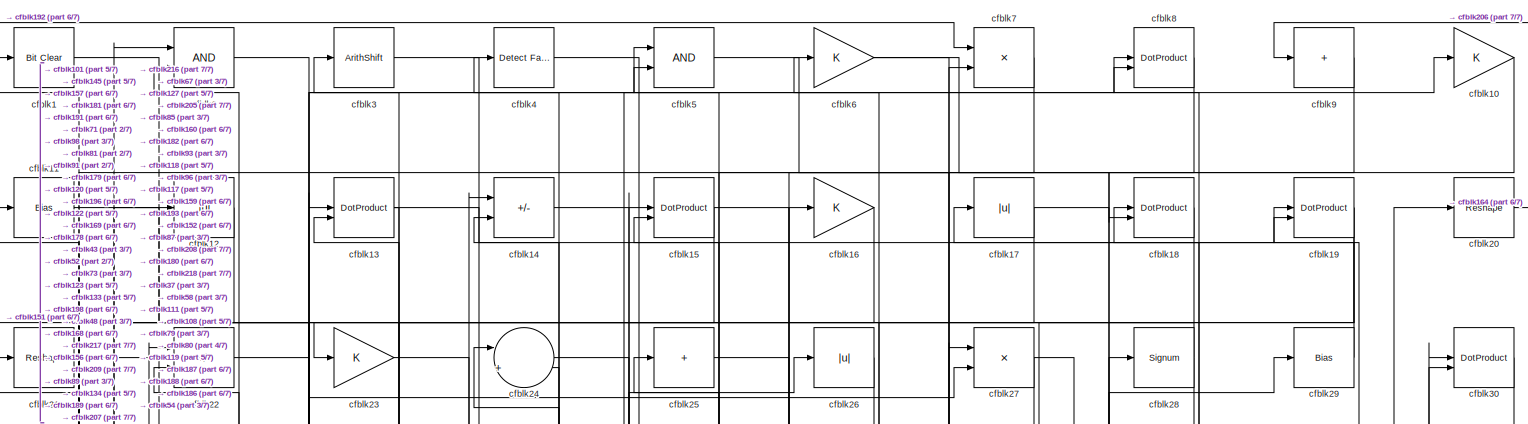
[diagram: root canvas - part 1/7, full width, top band]
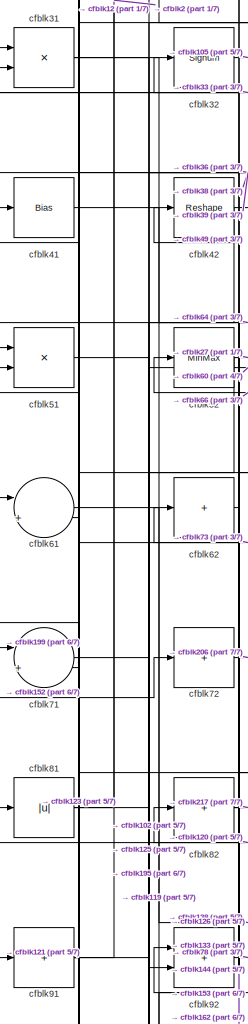
[diagram: root canvas - part 2/7, top left region]
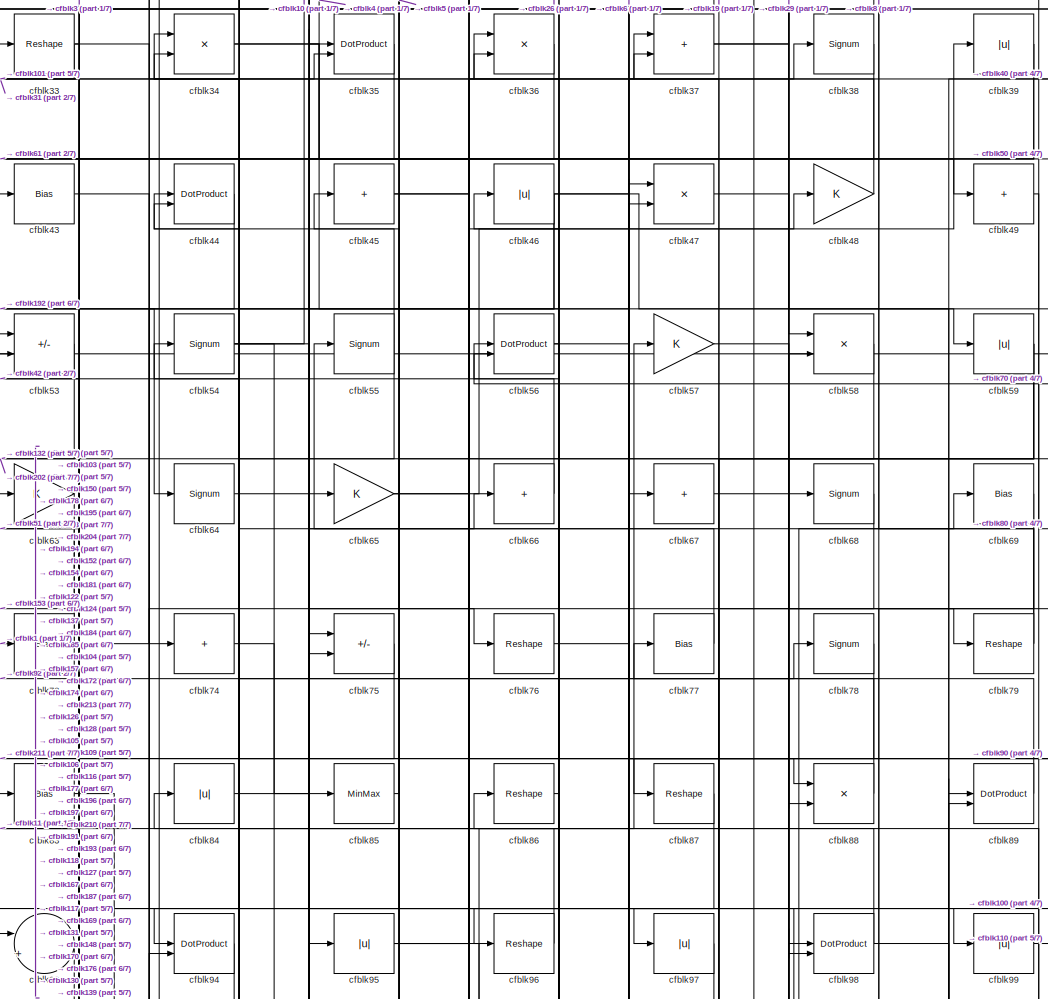
[diagram: root canvas - part 3/7, top center region]
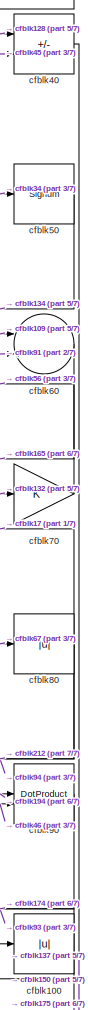
[diagram: root canvas - part 4/7, top right region]
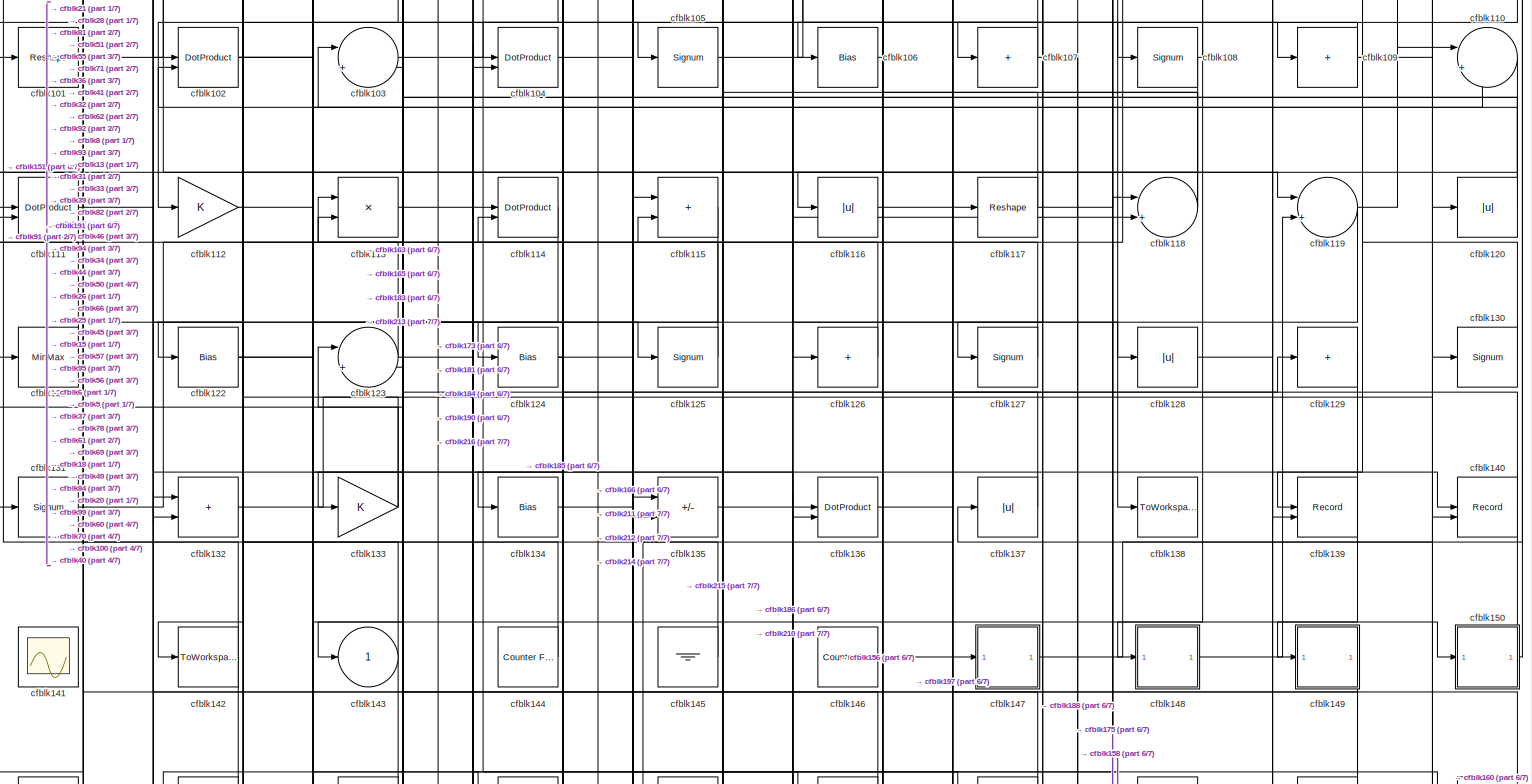
[diagram: root canvas - part 5/7, full width, middle band]
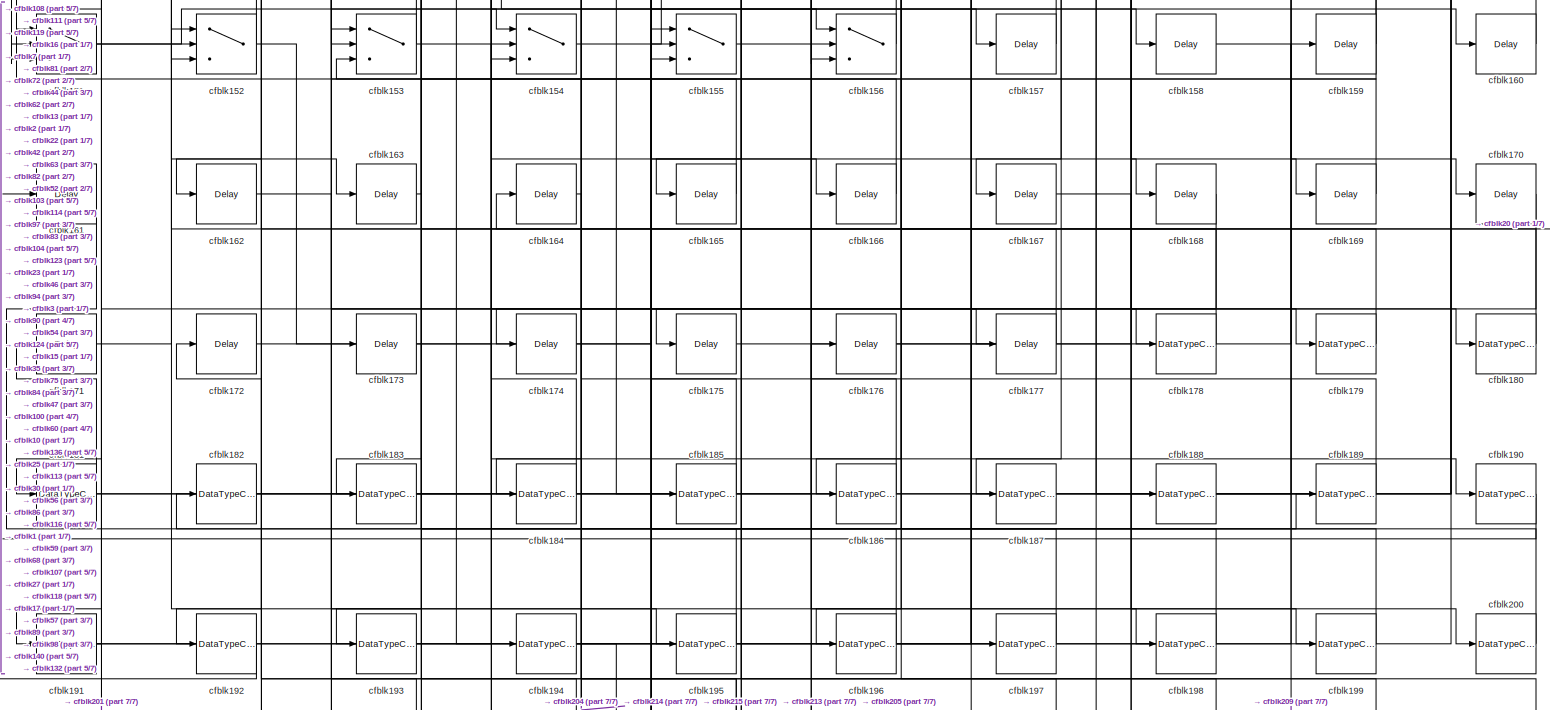
[diagram: root canvas - part 6/7, full width, bottom band]
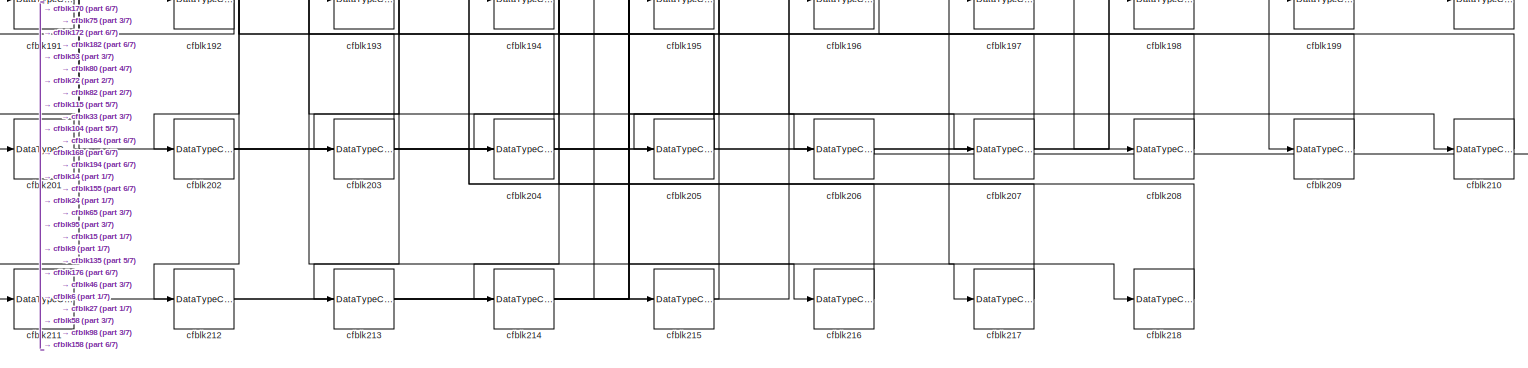
[diagram: root canvas - part 7/7, full width, bottom band]
MODEL slx_18c152e99af0
KIND model
CONFIG AbsTol = auto
CONFIG EnableMultiTasking = off
CONFIG FixedStep = auto
CONFIG MaxStep = auto
CONFIG MinStep = auto
CONFIG RelTol = 1e-3
CONFIG SampleTimeConstraint = Unconstrained
CONFIG SolverName = VariableStepAuto
CONFIG StartTime = 0.0
CONFIG StopTime = 10.0
BLOCK [Reference] cfblk1  REF=simulink/Logic and Bit
Operations/Bit Clear
  LibrarySourceBlock = hdlsllib/Logic and Bit\nOperations/Bit Clear
  SourceBlock = simulink/Logic and Bit\nOperations/Bit Clear
  SourceType = Bit Clear
BLOCK [Gain] cfblk10
BLOCK [Abs] cfblk100
  SaturateOnIntegerOverflow = off
BLOCK [Reshape] cfblk101
BLOCK [DotProduct] cfblk102
  OutDataTypeStr = Inherit: Inherit via internal rule
BLOCK [Sum] cfblk103
  Inputs = |++
BLOCK [DotProduct] cfblk104
  OutDataTypeStr = Inherit: Inherit via internal rule
BLOCK [Signum] cfblk105
BLOCK [Bias] cfblk106
  Bias = 0.0
  SaturateOnIntegerOverflow = off
BLOCK [Sum] cfblk107
  IconShape = rectangular
  Inputs = +
BLOCK [Signum] cfblk108
BLOCK [Sum] cfblk109
  IconShape = rectangular
  Inputs = +
BLOCK [Bias] cfblk11
  Bias = 0.0
  SaturateOnIntegerOverflow = off
BLOCK [Sum] cfblk110
  Inputs = |++
BLOCK [DotProduct] cfblk111
  OutDataTypeStr = Inherit: Inherit via internal rule
BLOCK [Gain] cfblk112
BLOCK [Product] cfblk113
  Inputs = */
  RndMeth = Zero
  SaturateOnIntegerOverflow = on
BLOCK [DotProduct] cfblk114
  OutDataTypeStr = Inherit: Inherit via internal rule
BLOCK [Sum] cfblk115
  IconShape = rectangular
BLOCK [Abs] cfblk116
  SaturateOnIntegerOverflow = off
BLOCK [Reshape] cfblk117
BLOCK [Sum] cfblk118
  Inputs = |++
BLOCK [Sum] cfblk119
  Inputs = |++
BLOCK [Abs] cfblk12
  SaturateOnIntegerOverflow = off
BLOCK [Abs] cfblk120
  SaturateOnIntegerOverflow = off
BLOCK [MinMax] cfblk121
BLOCK [Bias] cfblk122
  Bias = 0.0
  SaturateOnIntegerOverflow = off
BLOCK [Sum] cfblk123
  Inputs = |++
BLOCK [Bias] cfblk124
  Bias = 0.0
  SaturateOnIntegerOverflow = off
BLOCK [Signum] cfblk125
BLOCK [Sum] cfblk126
  IconShape = rectangular
  Inputs = +
BLOCK [Signum] cfblk127
BLOCK [Abs] cfblk128
  SaturateOnIntegerOverflow = off
BLOCK [Sum] cfblk129
  IconShape = rectangular
  Inputs = +
BLOCK [DotProduct] cfblk13
  OutDataTypeStr = Inherit: Inherit via internal rule
BLOCK [Signum] cfblk130
BLOCK [Signum] cfblk131
BLOCK [Sum] cfblk132
  IconShape = rectangular
BLOCK [Gain] cfblk133
BLOCK [Bias] cfblk134
  Bias = 0.0
  SaturateOnIntegerOverflow = off
BLOCK [Sum] cfblk135
  IconShape = rectangular
  Inputs = +-
BLOCK [DotProduct] cfblk136
  OutDataTypeStr = Inherit: Inherit via internal rule
BLOCK [Abs] cfblk137
  SaturateOnIntegerOverflow = off
BLOCK [ToWorkspace] cfblk138
  MaxDataPoints = inf
  SampleTime = -1
  SaveFormat = Timeseries
  VariableName = simout
BLOCK [Record] cfblk139
  CompatibilityTag = XY
  FileSettingsInternal = {"entries":[{"content":{"excelSettings":{"content":{},"type":"Streamout.ExcelSettings"}},"type":"Streamout.FileSettingStorage","uuid":""}],"packageUris":["http:\/\/schema.mathworks.com\/mf0\/streamout_blocks\/R2020a"],"version":"1.0"}
  Layout = [1 1]
  SignalsInternal = {"entries":[{"content":{"signals":[{"content":{"blockPath":[],"dimensions":[1],"domain":"","lineColor":"#a2142f","plots":[1],"port":1,"signalID":3074,"signalName":"XY Graph:1"},"type":"RecordBlkView.Signal","uuid":""},{"content":{"blockPath":[],"dimensions":[1],"domain":"","lineColor":"#139fff","plots":[1],"port":2,"signalID":3077,"signalName":"XY Graph:2"},"type":"RecordBlkView.Signal","uuid":""}...<+146ch>
  VisualizationBindings = {"xyplotplugin":{"info":[{"series":[{"bindingParametersList":[{"parameter":"X-Axis","signalID":3074,"signalName":"XY Graph:1"},{"parameter":"Y-Axis","signalID":3077,"signalName":"XY Graph:2"}],"seriesID":48839}],"subplotID":1}]}}
  st = -1
BLOCK [Sum] cfblk14
  IconShape = rectangular
  Inputs = +-
BLOCK [Record] cfblk140
  CompatibilityTag = XY
  FileSettingsInternal = {"entries":[{"content":{"excelSettings":{"content":{},"type":"Streamout.ExcelSettings"}},"type":"Streamout.FileSettingStorage","uuid":""}],"packageUris":["http:\/\/schema.mathworks.com\/mf0\/streamout_blocks\/R2020a"],"version":"1.0"}
  Layout = [1 1]
  SignalsInternal = {"entries":[{"content":{"signals":[{"content":{"blockPath":[],"dimensions":[1],"domain":"","lineColor":"#a2142f","plots":[1],"port":1,"signalID":3082,"signalName":"XY Graph:1"},"type":"RecordBlkView.Signal","uuid":""},{"content":{"blockPath":[],"dimensions":[1],"domain":"","lineColor":"#139fff","plots":[1],"port":2,"signalID":3085,"signalName":"XY Graph:2"},"type":"RecordBlkView.Signal","uuid":""}...<+146ch>
  VisualizationBindings = {"xyplotplugin":{"info":[{"series":[{"bindingParametersList":[{"parameter":"X-Axis","signalID":3082,"signalName":"XY Graph:1"},{"parameter":"Y-Axis","signalID":3085,"signalName":"XY Graph:2"}],"seriesID":35612}],"subplotID":1}]}}
  st = -1
BLOCK [Scope] cfblk141
  Floating = on
  NumInputPorts = 1
  ScopeSpecificationString = Simulink.scopes.TimeScopeBlockCfg('CurrentConfiguration', extmgr.ConfigurationSet(extmgr.Configuration('Core','General UI',true,'FigureColor',[0.156862745098039 0.156862745098039 0.156862745098039]),extmgr.Configuration('Core','Source UI',true),extmgr.Configuration('Sources','WiredSimulink',true,'DataLoggingVariableName','ScopeData1','DataLoggingSaveFormat','StructureWithTime','DataLoggingLimitDat...<+2713ch>
BLOCK [ToWorkspace] cfblk142
  MaxDataPoints = inf
  SampleTime = -1
  SaveFormat = Timeseries
  VariableName = simout
BLOCK [Outport] cfblk143
  VectorParamsAs1DForOutWhenUnconnected = off
BLOCK [Reference] cfblk144  REF=hdlsllib/Sources/Counter
Free-Running
  SourceBlock = hdlsllib/Sources/Counter\nFree-Running
  SourceType = Counter Free-Running
BLOCK [Ground] cfblk145
BLOCK [Reference] cfblk146  REF=hdlsllib/Sources/Counter
Free-Running
  SourceBlock = hdlsllib/Sources/Counter\nFree-Running
  SourceType = Counter Free-Running
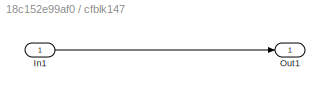
BLOCK [SubSystem] cfblk147
  LibrarySourceBlock = hdlsllib/Ports &\nSubsystems/Subsystem
BLOCK [Inport] cfblk147/In1
BLOCK [Outport] cfblk147/Out1
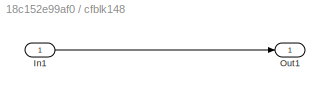
BLOCK [SubSystem] cfblk148
  LibrarySourceBlock = hdlsllib/Ports &\nSubsystems/Subsystem
BLOCK [Inport] cfblk148/In1
BLOCK [Outport] cfblk148/Out1
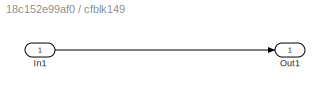
BLOCK [SubSystem] cfblk149
  LibrarySourceBlock = hdlsllib/Ports &\nSubsystems/Subsystem
BLOCK [Inport] cfblk149/In1
BLOCK [Outport] cfblk149/Out1
BLOCK [DotProduct] cfblk15
  OutDataTypeStr = Inherit: Inherit via internal rule
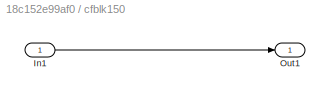
BLOCK [SubSystem] cfblk150
  LibrarySourceBlock = hdlsllib/Ports &\nSubsystems/Subsystem
BLOCK [Inport] cfblk150/In1
BLOCK [Outport] cfblk150/Out1
BLOCK [Switch] cfblk151
  InputSameDT = off
  SaturateOnIntegerOverflow = off
BLOCK [Switch] cfblk152
  InputSameDT = off
  SaturateOnIntegerOverflow = off
BLOCK [Switch] cfblk153
  InputSameDT = off
  SaturateOnIntegerOverflow = off
BLOCK [Switch] cfblk154
  InputSameDT = off
  SaturateOnIntegerOverflow = off
BLOCK [Switch] cfblk155
  InputSameDT = off
  SaturateOnIntegerOverflow = off
BLOCK [Switch] cfblk156
  InputSameDT = off
  SaturateOnIntegerOverflow = off
BLOCK [Delay] cfblk157
  InputPortMap = u0
  SampleTime = 1
BLOCK [Delay] cfblk158
  InputPortMap = u0
  SampleTime = 1
BLOCK [Delay] cfblk159
  InputPortMap = u0
  SampleTime = 1
BLOCK [Gain] cfblk16
BLOCK [Delay] cfblk160
  InputPortMap = u0
  SampleTime = 1
BLOCK [Delay] cfblk161
  InputPortMap = u0
  SampleTime = 1
BLOCK [Delay] cfblk162
  InputPortMap = u0
  SampleTime = 1
BLOCK [Delay] cfblk163
  InputPortMap = u0
  SampleTime = 1
BLOCK [Delay] cfblk164
  InputPortMap = u0
  SampleTime = 1
BLOCK [Delay] cfblk165
  InputPortMap = u0
  SampleTime = 1
BLOCK [Delay] cfblk166
  InputPortMap = u0
  SampleTime = 1
BLOCK [Delay] cfblk167
  InputPortMap = u0
  SampleTime = 1
BLOCK [Delay] cfblk168
  InputPortMap = u0
  SampleTime = 1
BLOCK [Delay] cfblk169
  InputPortMap = u0
  SampleTime = 1
BLOCK [Abs] cfblk17
  SaturateOnIntegerOverflow = off
BLOCK [Delay] cfblk170
  InputPortMap = u0
  SampleTime = 1
BLOCK [Delay] cfblk171
  InputPortMap = u0
  SampleTime = 1
BLOCK [Delay] cfblk172
  InputPortMap = u0
  SampleTime = 1
BLOCK [Delay] cfblk173
  InputPortMap = u0
  SampleTime = 1
BLOCK [Delay] cfblk174
  InputPortMap = u0
  SampleTime = 1
BLOCK [Delay] cfblk175
  InputPortMap = u0
  SampleTime = 1
BLOCK [Delay] cfblk176
  InputPortMap = u0
  SampleTime = 1
BLOCK [Delay] cfblk177
  InputPortMap = u0
  SampleTime = 1
BLOCK [DataTypeConversion] cfblk178
  OutDataTypeStr = uint8
  RndMeth = Floor
  SaturateOnIntegerOverflow = off
BLOCK [DataTypeConversion] cfblk179
  OutDataTypeStr = uint8
  RndMeth = Floor
  SaturateOnIntegerOverflow = off
BLOCK [DotProduct] cfblk18
  OutDataTypeStr = Inherit: Inherit via internal rule
BLOCK [DataTypeConversion] cfblk180
  OutDataTypeStr = uint8
  RndMeth = Floor
  SaturateOnIntegerOverflow = off
BLOCK [DataTypeConversion] cfblk181
  RndMeth = Floor
  SaturateOnIntegerOverflow = off
BLOCK [DataTypeConversion] cfblk182
  OutDataTypeStr = uint8
  RndMeth = Floor
  SaturateOnIntegerOverflow = off
BLOCK [DataTypeConversion] cfblk183
  OutDataTypeStr = uint8
  RndMeth = Floor
  SaturateOnIntegerOverflow = off
BLOCK [DataTypeConversion] cfblk184
  OutDataTypeStr = uint8
  RndMeth = Floor
  SaturateOnIntegerOverflow = off
BLOCK [DataTypeConversion] cfblk185
  OutDataTypeStr = uint8
  RndMeth = Floor
  SaturateOnIntegerOverflow = off
BLOCK [DataTypeConversion] cfblk186
  OutDataTypeStr = uint8
  RndMeth = Floor
  SaturateOnIntegerOverflow = off
BLOCK [DataTypeConversion] cfblk187
  OutDataTypeStr = uint8
  RndMeth = Floor
  SaturateOnIntegerOverflow = off
BLOCK [DataTypeConversion] cfblk188
  OutDataTypeStr = uint8
  RndMeth = Floor
  SaturateOnIntegerOverflow = off
BLOCK [DataTypeConversion] cfblk189
  OutDataTypeStr = uint8
  RndMeth = Floor
  SaturateOnIntegerOverflow = off
BLOCK [DotProduct] cfblk19
  OutDataTypeStr = Inherit: Inherit via internal rule
BLOCK [DataTypeConversion] cfblk190
  OutDataTypeStr = uint8
  RndMeth = Floor
  SaturateOnIntegerOverflow = off
BLOCK [DataTypeConversion] cfblk191
  RndMeth = Floor
  SaturateOnIntegerOverflow = off
BLOCK [DataTypeConversion] cfblk192
  OutDataTypeStr = uint8
  RndMeth = Floor
  SaturateOnIntegerOverflow = off
BLOCK [DataTypeConversion] cfblk193
  OutDataTypeStr = uint8
  RndMeth = Floor
  SaturateOnIntegerOverflow = off
BLOCK [DataTypeConversion] cfblk194
  RndMeth = Floor
  SaturateOnIntegerOverflow = off
BLOCK [DataTypeConversion] cfblk195
  OutDataTypeStr = uint8
  RndMeth = Floor
  SaturateOnIntegerOverflow = off
BLOCK [DataTypeConversion] cfblk196
  RndMeth = Floor
  SaturateOnIntegerOverflow = off
BLOCK [DataTypeConversion] cfblk197
  OutDataTypeStr = uint8
  RndMeth = Floor
  SaturateOnIntegerOverflow = off
BLOCK [DataTypeConversion] cfblk198
  OutDataTypeStr = uint8
  RndMeth = Floor
  SaturateOnIntegerOverflow = off
BLOCK [DataTypeConversion] cfblk199
  OutDataTypeStr = uint8
  RndMeth = Floor
  SaturateOnIntegerOverflow = off
BLOCK [Logic] cfblk2
  AllPortsSameDT = off
  OutDataTypeStr = boolean
BLOCK [Reshape] cfblk20
BLOCK [DataTypeConversion] cfblk200
  OutDataTypeStr = uint8
  RndMeth = Floor
  SaturateOnIntegerOverflow = off
BLOCK [DataTypeConversion] cfblk201
  OutDataTypeStr = uint8
  RndMeth = Floor
  SaturateOnIntegerOverflow = off
BLOCK [DataTypeConversion] cfblk202
  RndMeth = Floor
  SaturateOnIntegerOverflow = off
BLOCK [DataTypeConversion] cfblk203
  OutDataTypeStr = uint8
  RndMeth = Floor
  SaturateOnIntegerOverflow = off
BLOCK [DataTypeConversion] cfblk204
  OutDataTypeStr = uint8
  RndMeth = Floor
  SaturateOnIntegerOverflow = off
BLOCK [DataTypeConversion] cfblk205
  RndMeth = Floor
  SaturateOnIntegerOverflow = off
BLOCK [DataTypeConversion] cfblk206
  OutDataTypeStr = uint8
  RndMeth = Floor
  SaturateOnIntegerOverflow = off
BLOCK [DataTypeConversion] cfblk207
  OutDataTypeStr = uint8
  RndMeth = Floor
  SaturateOnIntegerOverflow = off
BLOCK [DataTypeConversion] cfblk208
  OutDataTypeStr = uint8
  RndMeth = Floor
  SaturateOnIntegerOverflow = off
BLOCK [DataTypeConversion] cfblk209
  OutDataTypeStr = uint8
  RndMeth = Floor
  SaturateOnIntegerOverflow = off
BLOCK [Reshape] cfblk21
BLOCK [DataTypeConversion] cfblk210
  OutDataTypeStr = uint8
  RndMeth = Floor
  SaturateOnIntegerOverflow = off
BLOCK [DataTypeConversion] cfblk211
  OutDataTypeStr = uint8
  RndMeth = Floor
  SaturateOnIntegerOverflow = off
BLOCK [DataTypeConversion] cfblk212
  OutDataTypeStr = uint8
  RndMeth = Floor
  SaturateOnIntegerOverflow = off
BLOCK [DataTypeConversion] cfblk213
  RndMeth = Floor
  SaturateOnIntegerOverflow = off
BLOCK [DataTypeConversion] cfblk214
  OutDataTypeStr = uint8
  RndMeth = Floor
  SaturateOnIntegerOverflow = off
BLOCK [DataTypeConversion] cfblk215
  OutDataTypeStr = uint8
  RndMeth = Floor
  SaturateOnIntegerOverflow = off
BLOCK [DataTypeConversion] cfblk216
  OutDataTypeStr = uint8
  RndMeth = Floor
  SaturateOnIntegerOverflow = off
BLOCK [DataTypeConversion] cfblk217
  OutDataTypeStr = uint8
  RndMeth = Floor
  SaturateOnIntegerOverflow = off
BLOCK [DataTypeConversion] cfblk218
  OutDataTypeStr = uint8
  RndMeth = Floor
  SaturateOnIntegerOverflow = off
BLOCK [Sum] cfblk22
  IconShape = rectangular
  Inputs = +-
BLOCK [Gain] cfblk23
BLOCK [Sum] cfblk24
  Inputs = |++
BLOCK [Sum] cfblk25
  IconShape = rectangular
  Inputs = +
BLOCK [Abs] cfblk26
  SaturateOnIntegerOverflow = off
BLOCK [Product] cfblk27
  Inputs = */
  RndMeth = Zero
  SaturateOnIntegerOverflow = on
BLOCK [Signum] cfblk28
BLOCK [Bias] cfblk29
  Bias = 0.0
  SaturateOnIntegerOverflow = off
BLOCK [ArithShift] cfblk3
  BitShiftNumber = 8
  InputPortMap = u0
BLOCK [DotProduct] cfblk30
  OutDataTypeStr = Inherit: Inherit via internal rule
BLOCK [Product] cfblk31
  Inputs = */
  RndMeth = Zero
  SaturateOnIntegerOverflow = on
BLOCK [Signum] cfblk32
BLOCK [Reshape] cfblk33
BLOCK [Product] cfblk34
  Inputs = */
  RndMeth = Zero
  SaturateOnIntegerOverflow = on
BLOCK [DotProduct] cfblk35
  OutDataTypeStr = Inherit: Inherit via internal rule
BLOCK [Product] cfblk36
  Inputs = */
  RndMeth = Zero
  SaturateOnIntegerOverflow = on
BLOCK [Sum] cfblk37
  IconShape = rectangular
BLOCK [Signum] cfblk38
BLOCK [Abs] cfblk39
  SaturateOnIntegerOverflow = off
BLOCK [Reference] cfblk4  REF=hdlsllib/Logic and Bit
Operations/Detect Fall
Nonpositive
  SourceBlock = hdlsllib/Logic and Bit\nOperations/Detect Fall\nNonpositive
  SourceType = Detect Fall Nonpositive
BLOCK [Sum] cfblk40
  IconShape = rectangular
  Inputs = +-
BLOCK [Bias] cfblk41
  Bias = 0.0
  SaturateOnIntegerOverflow = off
BLOCK [Reshape] cfblk42
BLOCK [Bias] cfblk43
  Bias = 0.0
  SaturateOnIntegerOverflow = off
BLOCK [DotProduct] cfblk44
  OutDataTypeStr = Inherit: Inherit via internal rule
BLOCK [Sum] cfblk45
  IconShape = rectangular
  Inputs = +
BLOCK [Abs] cfblk46
  SaturateOnIntegerOverflow = off
BLOCK [Product] cfblk47
  Inputs = */
  RndMeth = Zero
  SaturateOnIntegerOverflow = on
BLOCK [Gain] cfblk48
BLOCK [Sum] cfblk49
  IconShape = rectangular
  Inputs = +
BLOCK [Logic] cfblk5
  AllPortsSameDT = off
  OutDataTypeStr = boolean
BLOCK [Signum] cfblk50
BLOCK [Product] cfblk51
  Inputs = */
  RndMeth = Zero
  SaturateOnIntegerOverflow = on
BLOCK [MinMax] cfblk52
BLOCK [Sum] cfblk53
  IconShape = rectangular
  Inputs = +-
BLOCK [Signum] cfblk54
BLOCK [Signum] cfblk55
BLOCK [DotProduct] cfblk56
  OutDataTypeStr = Inherit: Inherit via internal rule
BLOCK [Gain] cfblk57
BLOCK [Product] cfblk58
  Inputs = */
  RndMeth = Zero
  SaturateOnIntegerOverflow = on
BLOCK [Abs] cfblk59
  SaturateOnIntegerOverflow = off
BLOCK [Gain] cfblk6
BLOCK [Sum] cfblk60
  Inputs = |++
BLOCK [Sum] cfblk61
  Inputs = |++
BLOCK [Sum] cfblk62
  IconShape = rectangular
  Inputs = +
BLOCK [Gain] cfblk63
BLOCK [Signum] cfblk64
BLOCK [Gain] cfblk65
BLOCK [Sum] cfblk66
  IconShape = rectangular
  Inputs = +
BLOCK [Sum] cfblk67
  IconShape = rectangular
  Inputs = +
BLOCK [Signum] cfblk68
BLOCK [Bias] cfblk69
  Bias = 0.0
  SaturateOnIntegerOverflow = off
BLOCK [Product] cfblk7
  Inputs = */
  RndMeth = Zero
  SaturateOnIntegerOverflow = on
BLOCK [Gain] cfblk70
BLOCK [Sum] cfblk71
  Inputs = |++
BLOCK [Sum] cfblk72
  IconShape = rectangular
  Inputs = +
BLOCK [Bias] cfblk73
  Bias = 0.0
  SaturateOnIntegerOverflow = off
BLOCK [Sum] cfblk74
  IconShape = rectangular
  Inputs = +
BLOCK [Sum] cfblk75
  IconShape = rectangular
  Inputs = +-
BLOCK [Reshape] cfblk76
BLOCK [Bias] cfblk77
  Bias = 0.0
  SaturateOnIntegerOverflow = off
BLOCK [Signum] cfblk78
BLOCK [Reshape] cfblk79
BLOCK [DotProduct] cfblk8
  OutDataTypeStr = Inherit: Inherit via internal rule
BLOCK [Abs] cfblk80
  SaturateOnIntegerOverflow = off
BLOCK [Abs] cfblk81
  SaturateOnIntegerOverflow = off
BLOCK [Sum] cfblk82
  IconShape = rectangular
  Inputs = +
BLOCK [Bias] cfblk83
  Bias = 0.0
  SaturateOnIntegerOverflow = off
BLOCK [Abs] cfblk84
  SaturateOnIntegerOverflow = off
BLOCK [MinMax] cfblk85
BLOCK [Reshape] cfblk86
BLOCK [Reshape] cfblk87
BLOCK [Product] cfblk88
  Inputs = */
  RndMeth = Zero
  SaturateOnIntegerOverflow = on
BLOCK [DotProduct] cfblk89
  OutDataTypeStr = Inherit: Inherit via internal rule
BLOCK [Sum] cfblk9
  IconShape = rectangular
  Inputs = +
BLOCK [DotProduct] cfblk90
  OutDataTypeStr = Inherit: Inherit via internal rule
BLOCK [Sum] cfblk91
  IconShape = rectangular
  Inputs = +
BLOCK [Sum] cfblk92
  IconShape = rectangular
BLOCK [Sum] cfblk93
  Inputs = |++
BLOCK [DotProduct] cfblk94
  OutDataTypeStr = Inherit: Inherit via internal rule
BLOCK [Abs] cfblk95
  SaturateOnIntegerOverflow = off
BLOCK [Reshape] cfblk96
BLOCK [Abs] cfblk97
  SaturateOnIntegerOverflow = off
BLOCK [DotProduct] cfblk98
  OutDataTypeStr = Inherit: Inherit via internal rule
BLOCK [Abs] cfblk99
  SaturateOnIntegerOverflow = off
NET cfblk100:1 -> cfblk175:1, cfblk93:1
LINE cfblk101:1 -> cfblk36:1
NET cfblk102:1 -> cfblk110:2, cfblk124:1, cfblk150:1
LINE cfblk103:1 -> cfblk108:1
LINE cfblk104:1 -> cfblk66:1
LINE cfblk105:1 -> cfblk57:1
LINE cfblk106:1 -> cfblk36:2
NET cfblk107:1 -> cfblk106:1, cfblk188:1
NET cfblk108:1 -> cfblk151:3, cfblk18:1
NET cfblk109:1 -> cfblk107:1, cfblk60:1
LINE cfblk10:1 -> cfblk156:2
LINE cfblk110:1 -> cfblk142:1
LINE cfblk111:1 -> cfblk140:1
LINE cfblk112:1 -> cfblk136:2
LINE cfblk113:1 -> cfblk158:1
LINE cfblk114:1 -> cfblk183:1
LINE cfblk115:1 -> cfblk213:1
LINE cfblk116:1 -> cfblk197:1
NET cfblk117:1 -> cfblk28:1, cfblk45:1
NET cfblk118:1 -> cfblk37:2, cfblk6:1
NET cfblk119:1 -> cfblk151:1, cfblk20:1
LINE cfblk11:1 -> cfblk43:1
NET cfblk120:1 -> cfblk102:2, cfblk31:1, cfblk82:1
LINE cfblk121:1 -> cfblk91:1
NET cfblk122:1 -> cfblk5:2, cfblk8:2
NET cfblk123:1 -> cfblk190:1, cfblk81:1
NET cfblk124:1 -> cfblk166:1, cfblk44:1
LINE cfblk125:1 -> cfblk113:1
LINE cfblk126:1 -> cfblk32:1
LINE cfblk127:1 -> cfblk25:1
LINE cfblk128:1 -> cfblk40:1
LINE cfblk129:1 -> cfblk149:1
LINE cfblk12:1 -> cfblk71:2
LINE cfblk130:1 -> cfblk84:1
LINE cfblk131:1 -> cfblk69:1
LINE cfblk132:1 -> cfblk70:1
NET cfblk133:1 -> cfblk121:1, cfblk62:1
LINE cfblk134:1 -> cfblk26:1
LINE cfblk135:1 -> cfblk210:1
LINE cfblk136:1 -> cfblk129:1
LINE cfblk137:1 -> cfblk34:1
NET cfblk13:1 -> cfblk123:2, cfblk19:2
LINE cfblk144:1 -> cfblk92:1
LINE cfblk145:1 -> cfblk21:1
LINE cfblk146:1 -> cfblk147:1
LINE cfblk147/In1:1 -> cfblk147/Out1:1
LINE cfblk147:1 -> cfblk119:2
LINE cfblk148/In1:1 -> cfblk148/Out1:1
LINE cfblk148:1 -> cfblk130:1
LINE cfblk149/In1:1 -> cfblk149/Out1:1
LINE cfblk149:1 -> cfblk131:1
LINE cfblk14:1 -> cfblk216:1
LINE cfblk150/In1:1 -> cfblk150/Out1:1
NET cfblk150:1 -> cfblk100:1, cfblk33:1
NET cfblk151:1 -> cfblk154:1, cfblk163:1
NET cfblk152:1 -> cfblk173:1, cfblk72:1
NET cfblk153:1 -> cfblk177:1, cfblk52:1
LINE cfblk154:1 -> cfblk47:2
LINE cfblk155:1 -> cfblk198:1
LINE cfblk156:1 -> cfblk113:2
LINE cfblk157:1 -> cfblk1:1
LINE cfblk158:1 -> cfblk209:1
LINE cfblk159:1 -> cfblk27:1
NET cfblk15:1 -> cfblk101:1, cfblk118:2
LINE cfblk160:1 -> cfblk132:1
LINE cfblk161:1 -> cfblk189:1
LINE cfblk162:1 -> cfblk179:1
LINE cfblk163:1 -> cfblk123:1
LINE cfblk164:1 -> cfblk214:1
LINE cfblk165:1 -> cfblk103:1
LINE cfblk166:1 -> cfblk153:3
LINE cfblk167:1 -> cfblk200:1
LINE cfblk168:1 -> cfblk204:1
LINE cfblk169:1 -> cfblk13:1
LINE cfblk16:1 -> cfblk181:1
LINE cfblk170:1 -> cfblk201:1
LINE cfblk171:1 -> cfblk152:1
LINE cfblk172:1 -> cfblk35:1
LINE cfblk173:1 -> cfblk104:2
LINE cfblk174:1 -> cfblk75:1
LINE cfblk175:1 -> cfblk118:1
LINE cfblk176:1 -> cfblk89:2
LINE cfblk177:1 -> cfblk56:2
LINE cfblk178:1 -> cfblk63:1
LINE cfblk179:1 -> cfblk22:1
NET cfblk17:1 -> cfblk151:2, cfblk180:1
LINE cfblk180:1 -> cfblk22:2
NET cfblk181:1 -> cfblk140:2, cfblk171:1, cfblk94:2
LINE cfblk182:1 -> cfblk16:1
LINE cfblk183:1 -> cfblk159:1
LINE cfblk184:1 -> cfblk114:1
LINE cfblk185:1 -> cfblk114:2
LINE cfblk186:1 -> cfblk136:1
LINE cfblk187:1 -> cfblk30:1
LINE cfblk188:1 -> cfblk30:2
LINE cfblk189:1 -> cfblk15:1
LINE cfblk18:1 -> cfblk133:1
LINE cfblk190:1 -> cfblk161:1
NET cfblk191:1 -> cfblk111:2, cfblk154:2, cfblk47:1
LINE cfblk192:1 -> cfblk7:1
LINE cfblk193:1 -> cfblk7:2
NET cfblk194:1 -> cfblk215:1, cfblk90:1
LINE cfblk195:1 -> cfblk83:1
NET cfblk196:1 -> cfblk2:2, cfblk89:1
LINE cfblk197:1 -> cfblk86:1
LINE cfblk198:1 -> cfblk13:2
LINE cfblk199:1 -> cfblk155:1
NET cfblk19:1 -> cfblk87:1, cfblk96:1
LINE cfblk1:1 -> cfblk73:1
LINE cfblk200:1 -> cfblk155:2
LINE cfblk201:1 -> cfblk155:3
NET cfblk202:1 -> cfblk58:2, cfblk95:1, cfblk98:1
LINE cfblk203:1 -> cfblk53:1
LINE cfblk204:1 -> cfblk53:2
NET cfblk205:1 -> cfblk172:1, cfblk182:1
LINE cfblk206:1 -> cfblk9:1
LINE cfblk207:1 -> cfblk15:2
LINE cfblk208:1 -> cfblk24:1
LINE cfblk209:1 -> cfblk24:2
LINE cfblk20:1 -> cfblk164:1
LINE cfblk210:1 -> cfblk46:1
LINE cfblk211:1 -> cfblk135:1
LINE cfblk212:1 -> cfblk135:2
NET cfblk213:1 -> cfblk176:1, cfblk65:1
LINE cfblk214:1 -> cfblk115:1
LINE cfblk215:1 -> cfblk115:2
LINE cfblk216:1 -> cfblk104:1
LINE cfblk217:1 -> cfblk14:1
LINE cfblk218:1 -> cfblk14:2
LINE cfblk21:1 -> cfblk120:1
LINE cfblk22:1 -> cfblk178:1
LINE cfblk23:1 -> cfblk168:1
LINE cfblk24:1 -> cfblk207:1
LINE cfblk25:1 -> cfblk160:1
LINE cfblk26:1 -> cfblk93:2
NET cfblk27:1 -> cfblk152:2, cfblk208:1
NET cfblk28:1 -> cfblk111:1, cfblk23:1
LINE cfblk29:1 -> cfblk19:1
LINE cfblk2:1 -> cfblk156:3
LINE cfblk30:1 -> cfblk186:1
NET cfblk31:1 -> cfblk49:1, cfblk64:1
LINE cfblk32:1 -> cfblk105:1
NET cfblk33:1 -> cfblk203:1, cfblk31:2, cfblk35:2
NET cfblk34:1 -> cfblk126:1, cfblk50:1
LINE cfblk35:1 -> cfblk75:2
LINE cfblk36:1 -> cfblk61:1
NET cfblk37:1 -> cfblk29:1, cfblk59:1
LINE cfblk38:1 -> cfblk92:2
NET cfblk39:1 -> cfblk103:2, cfblk51:1
LINE cfblk3:1 -> cfblk156:1
LINE cfblk40:1 -> cfblk137:1
LINE cfblk41:1 -> cfblk119:1
NET cfblk42:1 -> cfblk199:1, cfblk71:1
LINE cfblk43:1 -> cfblk74:1
LINE cfblk44:1 -> cfblk192:1
NET cfblk45:1 -> cfblk128:1, cfblk40:2
NET cfblk46:1 -> cfblk139:2, cfblk152:3, cfblk154:3, cfblk90:2
LINE cfblk47:1 -> cfblk68:1
LINE cfblk48:1 -> cfblk3:1
LINE cfblk49:1 -> cfblk139:1
LINE cfblk4:1 -> cfblk67:1
LINE cfblk50:1 -> cfblk134:1
LINE cfblk51:1 -> cfblk102:1
NET cfblk52:1 -> cfblk27:2, cfblk61:2
LINE cfblk53:1 -> cfblk202:1
NET cfblk54:1 -> cfblk10:1, cfblk185:1, cfblk76:1
NET cfblk55:1 -> cfblk132:2, cfblk44:2
NET cfblk56:1 -> cfblk116:1, cfblk88:2
LINE cfblk57:1 -> cfblk169:1
LINE cfblk58:1 -> cfblk97:1
NET cfblk59:1 -> cfblk167:1, cfblk184:1, cfblk98:2
LINE cfblk5:1 -> cfblk117:1
LINE cfblk60:1 -> cfblk165:1
LINE cfblk61:1 -> cfblk138:1
LINE cfblk62:1 -> cfblk162:1
LINE cfblk63:1 -> cfblk153:2
LINE cfblk64:1 -> cfblk99:1
NET cfblk65:1 -> cfblk39:1, cfblk88:1
LINE cfblk66:1 -> cfblk42:1
LINE cfblk67:1 -> cfblk80:1
LINE cfblk68:1 -> cfblk187:1
LINE cfblk69:1 -> cfblk148:1
NET cfblk6:1 -> cfblk218:1, cfblk58:1
LINE cfblk70:1 -> cfblk56:1
LINE cfblk71:1 -> cfblk125:1
LINE cfblk72:1 -> cfblk206:1
NET cfblk73:1 -> cfblk51:2, cfblk79:1
LINE cfblk74:1 -> cfblk85:1
LINE cfblk75:1 -> cfblk211:1
LINE cfblk76:1 -> cfblk38:1
LINE cfblk77:1 -> cfblk34:2
LINE cfblk78:1 -> cfblk127:1
NET cfblk79:1 -> cfblk55:1, cfblk8:1
LINE cfblk7:1 -> cfblk191:1
NET cfblk80:1 -> cfblk17:1, cfblk212:1, cfblk94:1
NET cfblk81:1 -> cfblk195:1, cfblk2:1
NET cfblk82:1 -> cfblk153:1, cfblk217:1
LINE cfblk83:1 -> cfblk194:1
LINE cfblk84:1 -> cfblk157:1
LINE cfblk85:1 -> cfblk5:1
LINE cfblk86:1 -> cfblk196:1
LINE cfblk87:1 -> cfblk143:1
LINE cfblk88:1 -> cfblk77:1
LINE cfblk89:1 -> cfblk4:1
LINE cfblk8:1 -> cfblk18:2
LINE cfblk90:1 -> cfblk174:1
NET cfblk91:1 -> cfblk12:1, cfblk41:1, cfblk60:2
LINE cfblk92:1 -> cfblk78:1
LINE cfblk93:1 -> cfblk112:1
LINE cfblk94:1 -> cfblk122:1
NET cfblk95:1 -> cfblk109:1, cfblk37:1, cfblk48:1
LINE cfblk96:1 -> cfblk54:1
LINE cfblk97:1 -> cfblk193:1
NET cfblk98:1 -> cfblk11:1, cfblk170:1
LINE cfblk99:1 -> cfblk110:1
LINE cfblk9:1 -> cfblk205:1
note: NET lines group one-source signal fan-out (src -> all destinations, sorted); 1:1 wires keep LINE
